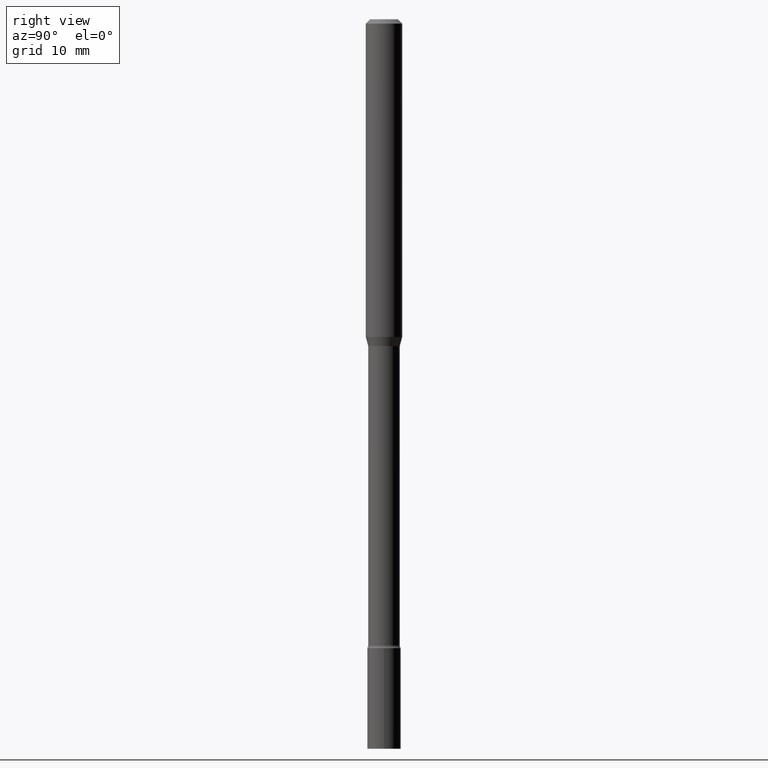
[diagram: clean part render]
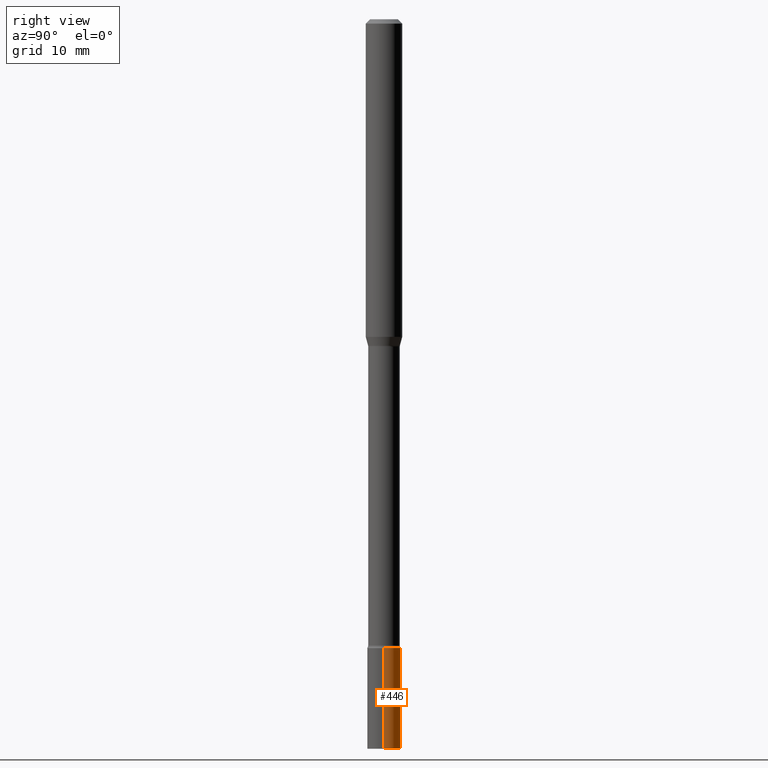
[diagram: same view with one face highlighted and labeled with its STEP entity id]
A machine part, right view. The second image highlights one B-rep face of the part: STEP entity #446.
In plain terms, the highlighted cylindrical surface (edge-blend (fillet) strip) has radius 1.4605 mm, axis along (-0, 0, 1).
Its self-contained STEP definition (entity closure, byte-faithful):
#1 = AXIS2_PLACEMENT_3D ( 'NONE', #306, #345, #19 ) ;
#19 = DIRECTION ( 'NONE',  ( 1.000000000000000000, -6.982962677686256455E-15, 0.000000000000000000 ) ) ;
#39 = LINE ( 'NONE', #195, #177 ) ;
#42 = CARTESIAN_POINT ( 'NONE',  ( 5.269985277328969904E-29, -7.524142285206980149E-15, -2.155000000000000249 ) ) ;
#44 = ORIENTED_EDGE ( 'NONE', *, *, #181, .T. ) ;
#53 = DIRECTION ( 'NONE',  ( -2.445468806185136877E-29, 3.491481338843145188E-15, 1.000000000000000000 ) ) ;
#58 = VERTEX_POINT ( 'NONE', #267 ) ;
#65 = CYLINDRICAL_SURFACE ( 'NONE', #83, 0.05750000000000000250 ) ;
#83 = AXIS2_PLACEMENT_3D ( 'NONE', #477, #344, #305 ) ;
#108 = AXIS2_PLACEMENT_3D ( 'NONE', #42, #386, #272 ) ;
#135 = EDGE_LOOP ( 'NONE', ( #44, #381, #443, #304 ) ) ;
#141 = EDGE_CURVE ( 'NONE', #352, #58, #39, .T. ) ;
#177 = VECTOR ( 'NONE', #419, 39.37007874015748143 ) ;
#181 = EDGE_CURVE ( 'NONE', #352, #429, #363, .T. ) ;
#195 = CARTESIAN_POINT ( 'NONE',  ( 0.05750000000000000250, -4.015203539669603161E-16, 2.803801646082662941E-30 ) ) ;
#199 = CIRCLE ( 'NONE', #108, 0.05750000000000000250 ) ;
#206 = EDGE_CURVE ( 'NONE', #58, #507, #199, .T. ) ;
#245 = CARTESIAN_POINT ( 'NONE',  ( -0.05750000000000000250, -7.717860743095363393E-15, -2.155000000000000249 ) ) ;
#259 = VECTOR ( 'NONE', #53, 39.37007874015748143 ) ;
#267 = CARTESIAN_POINT ( 'NONE',  ( 0.05750000000000000250, -7.925662639173940169E-15, -2.155000000000000249 ) ) ;
#272 = DIRECTION ( 'NONE',  ( 1.000000000000000000, -6.982962677686273810E-15, 0.000000000000000000 ) ) ;
#304 = ORIENTED_EDGE ( 'NONE', *, *, #141, .F. ) ;
#305 = DIRECTION ( 'NONE',  ( 1.000000000000000000, -6.982962677686265922E-15, 4.876176775795935232E-29 ) ) ;
#306 = CARTESIAN_POINT ( 'NONE',  ( 6.113672015462842613E-29, -8.728703347107864943E-15, -2.500000000000000000 ) ) ;
#318 = CARTESIAN_POINT ( 'NONE',  ( -0.05750000000000000250, -7.717860743095363393E-15, -2.500000000000000000 ) ) ;
#338 = LINE ( 'NONE', #415, #259 ) ;
#344 = DIRECTION ( 'NONE',  ( -2.445468806185136597E-29, 3.491481338843145583E-15, 1.000000000000000000 ) ) ;
#345 = DIRECTION ( 'NONE',  ( -2.445468806185136597E-29, 3.491481338843145583E-15, 1.000000000000000000 ) ) ;
#352 = VERTEX_POINT ( 'NONE', #447 ) ;
#363 = CIRCLE ( 'NONE', #1, 0.05750000000000000250 ) ;
#369 = EDGE_CURVE ( 'NONE', #429, #507, #338, .T. ) ;
#381 = ORIENTED_EDGE ( 'NONE', *, *, #369, .T. ) ;
#386 = DIRECTION ( 'NONE',  ( -2.445468806185136597E-29, 3.491481338843145583E-15, 1.000000000000000000 ) ) ;
#415 = CARTESIAN_POINT ( 'NONE',  ( -0.05750000000000000250, 4.085620730620576246E-16, -2.828387676896570712E-30 ) ) ;
#419 = DIRECTION ( 'NONE',  ( -2.445468806185136877E-29, 3.491481338843145188E-15, 1.000000000000000000 ) ) ;
#429 = VERTEX_POINT ( 'NONE', #318 ) ;
#443 = ORIENTED_EDGE ( 'NONE', *, *, #206, .F. ) ;
#446 = ADVANCED_FACE ( 'NONE', ( #469 ), #65, .T. ) ;
#447 = CARTESIAN_POINT ( 'NONE',  ( 0.05750000000000000250, -9.130223701074824963E-15, -2.500000000000000000 ) ) ;
#469 = FACE_OUTER_BOUND ( 'NONE', #135, .T. ) ;
#477 = CARTESIAN_POINT ( 'NONE',  ( 0.000000000000000000, 0.000000000000000000, 0.000000000000000000 ) ) ;
#507 = VERTEX_POINT ( 'NONE', #245 ) ;